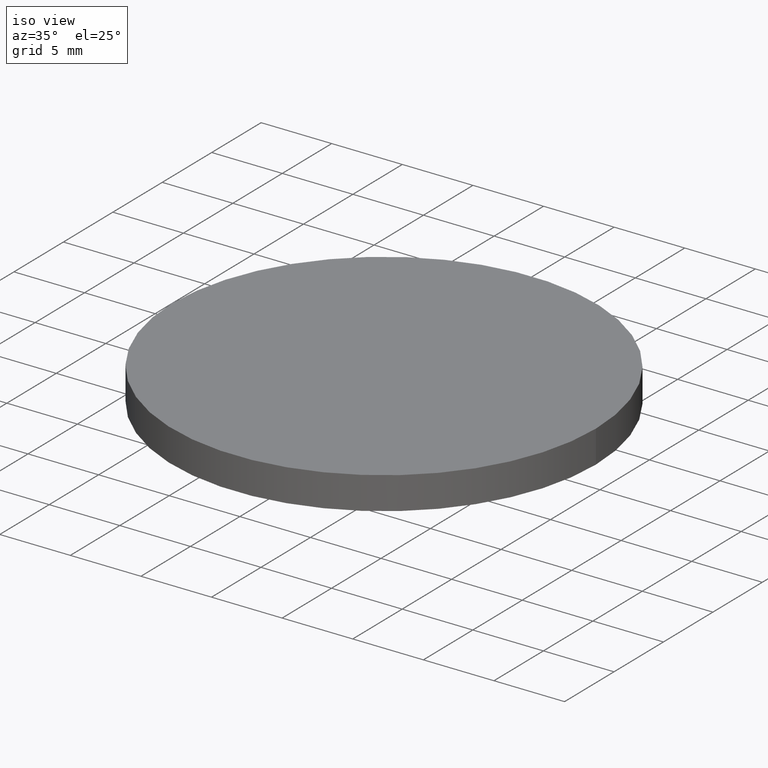
[diagram: clean part render]
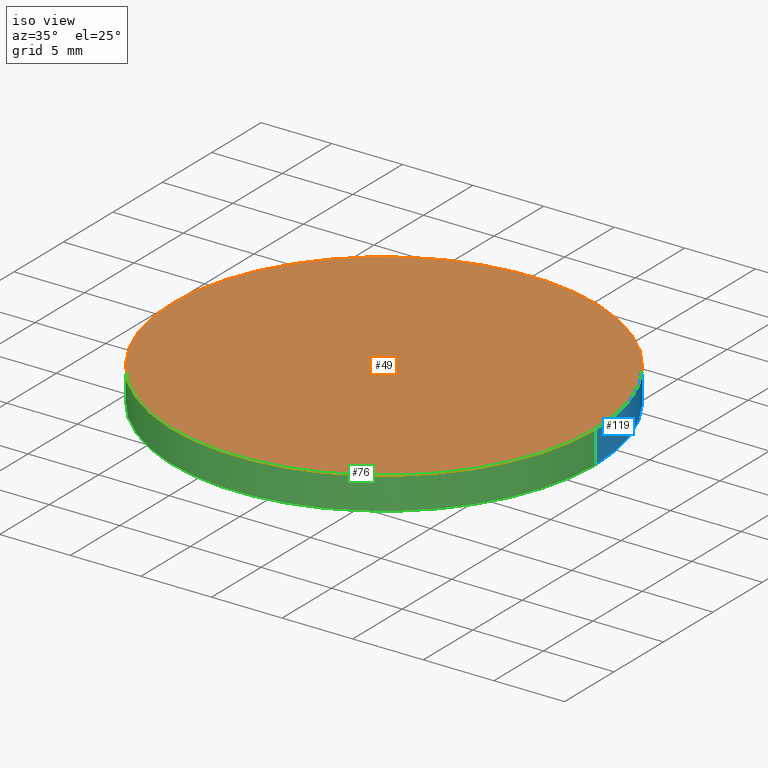
[diagram: same view with three faces highlighted in distinct colors, each labeled with its STEP entity id]
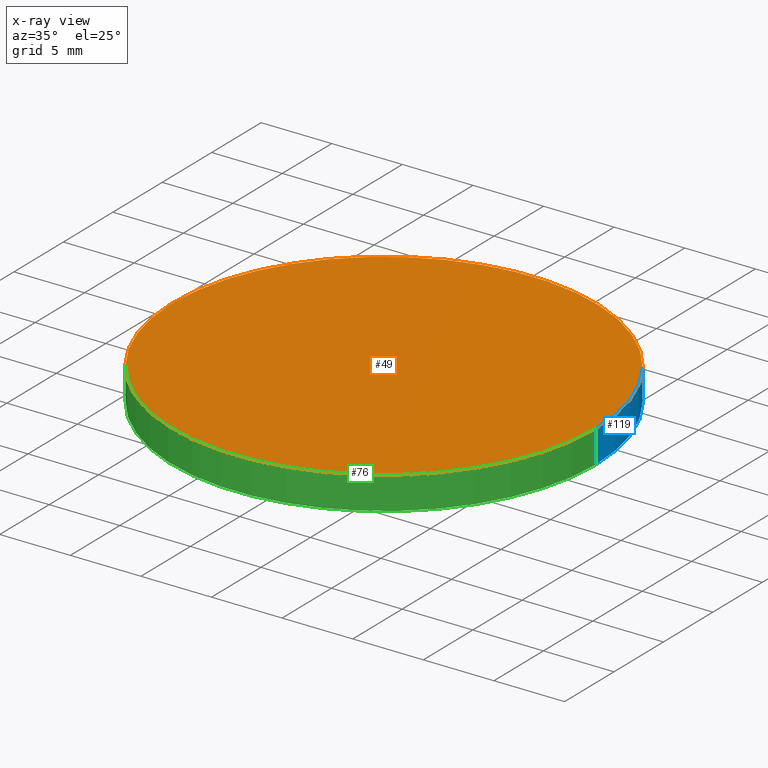
[diagram: x-ray of the same camera — body ghosted, the three highlighted faces saturated]
A machine part, iso view with three faces highlighted in distinct colors.
The next image is the same camera in x-ray (body ghosted, the three faces saturated) — at least one of them is partly hidden behind the body in this view.
Their STEP definitions:

[orange] entity #49 — the highlighted planar face has unit normal (0, 0, 1).
#19 = CIRCLE ( 'NONE', #90, 15.00000000000000000 ) ;
#20 = CARTESIAN_POINT ( 'NONE',  ( 93.61498394228370000, 61.56324183452659300, 2.299999999999999800 ) ) ;
#22 = CARTESIAN_POINT ( 'NONE',  ( 108.6149839422837000, 61.56324183452659300, 2.299999999999999800 ) ) ;
#23 = EDGE_CURVE ( 'NONE', #85, #87, #106, .T. ) ;
#25 = ORIENTED_EDGE ( 'NONE', *, *, #23, .T. ) ;
#37 = DIRECTION ( 'NONE',  ( 1.000000000000000000, 0.0000000000000000000, -0.0000000000000000000 ) ) ;
#39 = CARTESIAN_POINT ( 'NONE',  ( 123.6149839422836900, 61.56324183452659300, 2.299999999999999800 ) ) ;
#48 = AXIS2_PLACEMENT_3D ( 'NONE', #102, #134, #69 ) ;
#49 = ADVANCED_FACE ( 'NONE', ( #116 ), #50, .T. ) ;
#50 = PLANE ( 'NONE',  #73 ) ;
#59 = DIRECTION ( 'NONE',  ( 0.0000000000000000000, 0.0000000000000000000, 1.000000000000000000 ) ) ;
#60 = ORIENTED_EDGE ( 'NONE', *, *, #97, .T. ) ;
#69 = DIRECTION ( 'NONE',  ( 1.000000000000000000, 0.0000000000000000000, 0.0000000000000000000 ) ) ;
#73 = AXIS2_PLACEMENT_3D ( 'NONE', #22, #59, #37 ) ;
#80 = DIRECTION ( 'NONE',  ( 1.000000000000000000, 0.0000000000000000000, 0.0000000000000000000 ) ) ;
#85 = VERTEX_POINT ( 'NONE', #20 ) ;
#87 = VERTEX_POINT ( 'NONE', #39 ) ;
#90 = AXIS2_PLACEMENT_3D ( 'NONE', #128, #94, #80 ) ;
#94 = DIRECTION ( 'NONE',  ( 0.0000000000000000000, 0.0000000000000000000, 1.000000000000000000 ) ) ;
#97 = EDGE_CURVE ( 'NONE', #87, #85, #19, .T. ) ;
#102 = CARTESIAN_POINT ( 'NONE',  ( 108.6149839422837000, 61.56324183452659300, 2.299999999999999800 ) ) ;
#106 = CIRCLE ( 'NONE', #48, 15.00000000000000000 ) ;
#112 = EDGE_LOOP ( 'NONE', ( #25, #60 ) ) ;
#116 = FACE_OUTER_BOUND ( 'NONE', #112, .T. ) ;
#128 = CARTESIAN_POINT ( 'NONE',  ( 108.6149839422837000, 61.56324183452659300, 2.299999999999999800 ) ) ;
#134 = DIRECTION ( 'NONE',  ( 0.0000000000000000000, 0.0000000000000000000, 1.000000000000000000 ) ) ;

[blue] entity #119 — the highlighted cylindrical surface (partial cylindrical patch) has radius 15 mm, axis along (-0, -0, -1).
#4 = LINE ( 'NONE', #35, #129 ) ;
#13 = DIRECTION ( 'NONE',  ( 0.0000000000000000000, 0.0000000000000000000, 1.000000000000000000 ) ) ;
#14 = ORIENTED_EDGE ( 'NONE', *, *, #93, .F. ) ;
#18 = EDGE_CURVE ( 'NONE', #87, #21, #4, .T. ) ;
#19 = CIRCLE ( 'NONE', #90, 15.00000000000000000 ) ;
#20 = CARTESIAN_POINT ( 'NONE',  ( 93.61498394228370000, 61.56324183452659300, 2.299999999999999800 ) ) ;
#21 = VERTEX_POINT ( 'NONE', #133 ) ;
#30 = CARTESIAN_POINT ( 'NONE',  ( 108.6149839422837000, 61.56324183452659300, 0.0000000000000000000 ) ) ;
#31 = VECTOR ( 'NONE', #63, 1000.000000000000000 ) ;
#32 = CARTESIAN_POINT ( 'NONE',  ( 93.61498394228370000, 61.56324183452659300, 2.299999999999999800 ) ) ;
#35 = CARTESIAN_POINT ( 'NONE',  ( 123.6149839422836900, 61.56324183452659300, 2.299999999999999800 ) ) ;
#38 = CIRCLE ( 'NONE', #75, 15.00000000000000000 ) ;
#39 = CARTESIAN_POINT ( 'NONE',  ( 123.6149839422836900, 61.56324183452659300, 2.299999999999999800 ) ) ;
#52 = ORIENTED_EDGE ( 'NONE', *, *, #97, .F. ) ;
#54 = CARTESIAN_POINT ( 'NONE',  ( 93.61498394228370000, 61.56324183452659300, 0.0000000000000000000 ) ) ;
#61 = DIRECTION ( 'NONE',  ( -0.0000000000000000000, -0.0000000000000000000, -1.000000000000000000 ) ) ;
#63 = DIRECTION ( 'NONE',  ( -0.0000000000000000000, -0.0000000000000000000, -1.000000000000000000 ) ) ;
#71 = CYLINDRICAL_SURFACE ( 'NONE', #110, 15.00000000000000000 ) ;
#75 = AXIS2_PLACEMENT_3D ( 'NONE', #30, #13, #139 ) ;
#77 = EDGE_CURVE ( 'NONE', #21, #101, #38, .T. ) ;
#80 = DIRECTION ( 'NONE',  ( 1.000000000000000000, 0.0000000000000000000, 0.0000000000000000000 ) ) ;
#85 = VERTEX_POINT ( 'NONE', #20 ) ;
#87 = VERTEX_POINT ( 'NONE', #39 ) ;
#90 = AXIS2_PLACEMENT_3D ( 'NONE', #128, #94, #80 ) ;
#93 = EDGE_CURVE ( 'NONE', #85, #101, #140, .T. ) ;
#94 = DIRECTION ( 'NONE',  ( 0.0000000000000000000, 0.0000000000000000000, 1.000000000000000000 ) ) ;
#97 = EDGE_CURVE ( 'NONE', #87, #85, #19, .T. ) ;
#101 = VERTEX_POINT ( 'NONE', #54 ) ;
#103 = DIRECTION ( 'NONE',  ( -0.0000000000000000000, -0.0000000000000000000, -1.000000000000000000 ) ) ;
#105 = CARTESIAN_POINT ( 'NONE',  ( 108.6149839422837000, 61.56324183452659300, 2.299999999999999800 ) ) ;
#109 = ORIENTED_EDGE ( 'NONE', *, *, #18, .T. ) ;
#110 = AXIS2_PLACEMENT_3D ( 'NONE', #105, #103, #138 ) ;
#115 = ORIENTED_EDGE ( 'NONE', *, *, #77, .T. ) ;
#118 = EDGE_LOOP ( 'NONE', ( #52, #109, #115, #14 ) ) ;
#119 = ADVANCED_FACE ( 'NONE', ( #126 ), #71, .T. ) ;
#126 = FACE_OUTER_BOUND ( 'NONE', #118, .T. ) ;
#128 = CARTESIAN_POINT ( 'NONE',  ( 108.6149839422837000, 61.56324183452659300, 2.299999999999999800 ) ) ;
#129 = VECTOR ( 'NONE', #61, 1000.000000000000000 ) ;
#133 = CARTESIAN_POINT ( 'NONE',  ( 123.6149839422836900, 61.56324183452659300, 0.0000000000000000000 ) ) ;
#138 = DIRECTION ( 'NONE',  ( -1.000000000000000000, 0.0000000000000000000, 0.0000000000000000000 ) ) ;
#139 = DIRECTION ( 'NONE',  ( 1.000000000000000000, 0.0000000000000000000, 0.0000000000000000000 ) ) ;
#140 = LINE ( 'NONE', #32, #31 ) ;

[green] entity #76 — the highlighted cylindrical surface (partial cylindrical patch) has radius 15 mm, axis along (-0, -0, -1).
#4 = LINE ( 'NONE', #35, #129 ) ;
#6 = EDGE_LOOP ( 'NONE', ( #78, #122, #24, #83 ) ) ;
#10 = CARTESIAN_POINT ( 'NONE',  ( 108.6149839422837000, 61.56324183452659300, 2.299999999999999800 ) ) ;
#11 = DIRECTION ( 'NONE',  ( -0.0000000000000000000, -0.0000000000000000000, -1.000000000000000000 ) ) ;
#18 = EDGE_CURVE ( 'NONE', #87, #21, #4, .T. ) ;
#20 = CARTESIAN_POINT ( 'NONE',  ( 93.61498394228370000, 61.56324183452659300, 2.299999999999999800 ) ) ;
#21 = VERTEX_POINT ( 'NONE', #133 ) ;
#23 = EDGE_CURVE ( 'NONE', #85, #87, #106, .T. ) ;
#24 = ORIENTED_EDGE ( 'NONE', *, *, #93, .T. ) ;
#26 = DIRECTION ( 'NONE',  ( 0.0000000000000000000, 0.0000000000000000000, 1.000000000000000000 ) ) ;
#31 = VECTOR ( 'NONE', #63, 1000.000000000000000 ) ;
#32 = CARTESIAN_POINT ( 'NONE',  ( 93.61498394228370000, 61.56324183452659300, 2.299999999999999800 ) ) ;
#35 = CARTESIAN_POINT ( 'NONE',  ( 123.6149839422836900, 61.56324183452659300, 2.299999999999999800 ) ) ;
#39 = CARTESIAN_POINT ( 'NONE',  ( 123.6149839422836900, 61.56324183452659300, 2.299999999999999800 ) ) ;
#43 = CYLINDRICAL_SURFACE ( 'NONE', #107, 15.00000000000000000 ) ;
#46 = CIRCLE ( 'NONE', #56, 15.00000000000000000 ) ;
#48 = AXIS2_PLACEMENT_3D ( 'NONE', #102, #134, #69 ) ;
#54 = CARTESIAN_POINT ( 'NONE',  ( 93.61498394228370000, 61.56324183452659300, 0.0000000000000000000 ) ) ;
#56 = AXIS2_PLACEMENT_3D ( 'NONE', #99, #26, #123 ) ;
#57 = FACE_OUTER_BOUND ( 'NONE', #6, .T. ) ;
#58 = EDGE_CURVE ( 'NONE', #101, #21, #46, .T. ) ;
#61 = DIRECTION ( 'NONE',  ( -0.0000000000000000000, -0.0000000000000000000, -1.000000000000000000 ) ) ;
#63 = DIRECTION ( 'NONE',  ( -0.0000000000000000000, -0.0000000000000000000, -1.000000000000000000 ) ) ;
#69 = DIRECTION ( 'NONE',  ( 1.000000000000000000, 0.0000000000000000000, 0.0000000000000000000 ) ) ;
#76 = ADVANCED_FACE ( 'NONE', ( #57 ), #43, .T. ) ;
#78 = ORIENTED_EDGE ( 'NONE', *, *, #18, .F. ) ;
#79 = DIRECTION ( 'NONE',  ( -1.000000000000000000, 0.0000000000000000000, 0.0000000000000000000 ) ) ;
#83 = ORIENTED_EDGE ( 'NONE', *, *, #58, .T. ) ;
#85 = VERTEX_POINT ( 'NONE', #20 ) ;
#87 = VERTEX_POINT ( 'NONE', #39 ) ;
#93 = EDGE_CURVE ( 'NONE', #85, #101, #140, .T. ) ;
#99 = CARTESIAN_POINT ( 'NONE',  ( 108.6149839422837000, 61.56324183452659300, 0.0000000000000000000 ) ) ;
#101 = VERTEX_POINT ( 'NONE', #54 ) ;
#102 = CARTESIAN_POINT ( 'NONE',  ( 108.6149839422837000, 61.56324183452659300, 2.299999999999999800 ) ) ;
#106 = CIRCLE ( 'NONE', #48, 15.00000000000000000 ) ;
#107 = AXIS2_PLACEMENT_3D ( 'NONE', #10, #11, #79 ) ;
#122 = ORIENTED_EDGE ( 'NONE', *, *, #23, .F. ) ;
#123 = DIRECTION ( 'NONE',  ( 1.000000000000000000, 0.0000000000000000000, 0.0000000000000000000 ) ) ;
#129 = VECTOR ( 'NONE', #61, 1000.000000000000000 ) ;
#133 = CARTESIAN_POINT ( 'NONE',  ( 123.6149839422836900, 61.56324183452659300, 0.0000000000000000000 ) ) ;
#134 = DIRECTION ( 'NONE',  ( 0.0000000000000000000, 0.0000000000000000000, 1.000000000000000000 ) ) ;
#140 = LINE ( 'NONE', #32, #31 ) ;